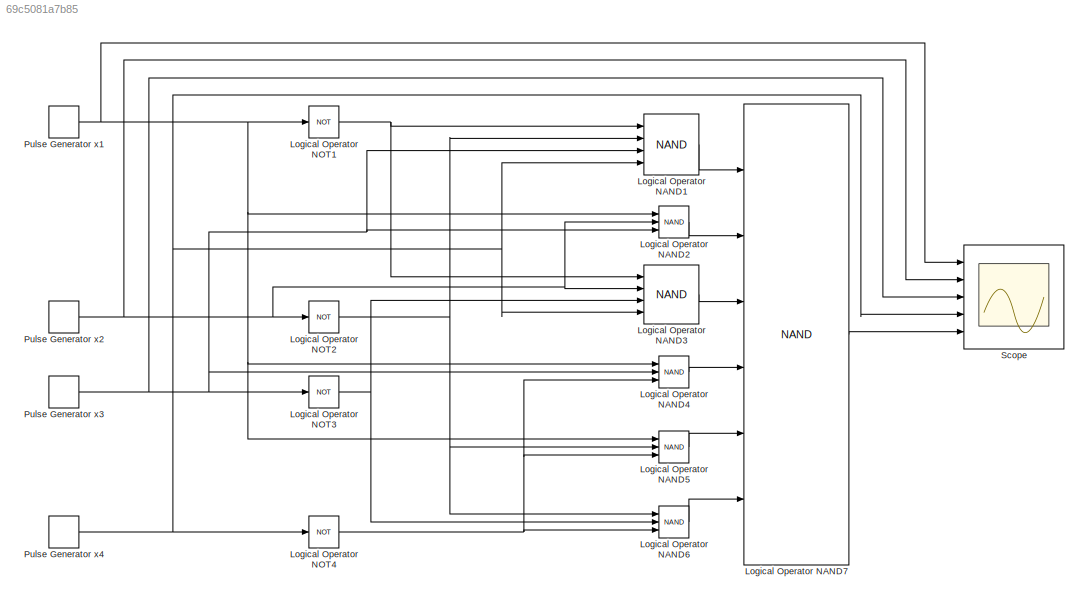
MODEL slx_69c5081a7b85
KIND model
CONFIG AbsTol = auto
CONFIG EnableMultiTasking = off
CONFIG FixedStep = auto
CONFIG MaxStep = auto
CONFIG MinStep = auto
CONFIG RelTol = 1e-3
CONFIG SampleTimeConstraint = Unconstrained
CONFIG Solver = VariableStepAuto
CONFIG SolverName = VariableStepAuto
CONFIG StartTime = 0.0
CONFIG StopTime = 16
BLOCK [Logic] Logical Operator NAND1
  AllPortsSameDT = off
  Inputs = 4
  Operator = NAND
  OutDataTypeStr = boolean
  Ports = [4, 1]
BLOCK [Logic] Logical Operator NAND2
  AllPortsSameDT = off
  Inputs = 3
  Operator = NAND
  OutDataTypeStr = boolean
  Ports = [3, 1]
BLOCK [Logic] Logical Operator NAND3
  AllPortsSameDT = off
  Inputs = 4
  Operator = NAND
  OutDataTypeStr = boolean
  Ports = [4, 1]
BLOCK [Logic] Logical Operator NAND4
  AllPortsSameDT = off
  Inputs = 3
  Operator = NAND
  OutDataTypeStr = boolean
  Ports = [3, 1]
BLOCK [Logic] Logical Operator NAND5
  AllPortsSameDT = off
  Inputs = 3
  Operator = NAND
  OutDataTypeStr = boolean
  Ports = [3, 1]
BLOCK [Logic] Logical Operator NAND6
  AllPortsSameDT = off
  Inputs = 3
  Operator = NAND
  OutDataTypeStr = boolean
  Ports = [3, 1]
BLOCK [Logic] Logical Operator NAND7
  AllPortsSameDT = off
  Inputs = 6
  Operator = NAND
  OutDataTypeStr = boolean
  Ports = [6, 1]
BLOCK [Logic] Logical Operator NOT1
  AllPortsSameDT = off
  Operator = NOT
  OutDataTypeStr = boolean
  Ports = [1, 1]
BLOCK [Logic] Logical Operator NOT2
  AllPortsSameDT = off
  Operator = NOT
  OutDataTypeStr = boolean
  Ports = [1, 1]
BLOCK [Logic] Logical Operator NOT3
  AllPortsSameDT = off
  Operator = NOT
  OutDataTypeStr = boolean
  Ports = [1, 1]
BLOCK [Logic] Logical Operator NOT4
  AllPortsSameDT = off
  Operator = NOT
  OutDataTypeStr = boolean
  Ports = [1, 1]
BLOCK [DiscretePulseGenerator] Pulse Generator x1
  Ports = [0, 1]
  PulseType = Time based
  PulseWidth = 50
BLOCK [DiscretePulseGenerator] Pulse Generator x2
  Period = 4
  Ports = [0, 1]
  PulseType = Time based
  PulseWidth = 50
BLOCK [DiscretePulseGenerator] Pulse Generator x3
  Period = 8
  Ports = [0, 1]
  PulseType = Time based
  PulseWidth = 50
BLOCK [DiscretePulseGenerator] Pulse Generator x4
  Period = 16
  Ports = [0, 1]
  PulseType = Time based
  PulseWidth = 50
BLOCK [Scope] Scope
  NumInputPorts = 5
  Ports = [5]
  ScopeSpecificationString = Simulink.scopes.TimeScopeBlockCfg('CurrentConfiguration', extmgr.ConfigurationSet(extmgr.Configuration('Core','General UI',true),extmgr.Configuration('Core','Source UI',true),extmgr.Configuration('Sources','WiredSimulink',true),extmgr.Configuration('Visuals','Time Domain',true,'SerializedDisplays',{struct('MinYLimReal','-1','MaxYLimReal','2','YLabelReal','','MinYLimMag','0','MaxYLimMag','10','Lege...<+6029ch>
LINE Logical Operator NAND1:1 -> Logical Operator NAND7:1
LINE Logical Operator NAND2:1 -> Logical Operator NAND7:2
LINE Logical Operator NAND3:1 -> Logical Operator NAND7:3
LINE Logical Operator NAND4:1 -> Logical Operator NAND7:4
LINE Logical Operator NAND5:1 -> Logical Operator NAND7:5
LINE Logical Operator NAND6:1 -> Logical Operator NAND7:6
LINE Logical Operator NAND7:1 -> Scope:5
NET Logical Operator NOT1:1 -> Logical Operator NAND1:1, Logical Operator NAND3:1
NET Logical Operator NOT2:1 -> Logical Operator NAND1:2, Logical Operator NAND5:2, Logical Operator NAND6:1
NET Logical Operator NOT3:1 -> Logical Operator NAND3:3, Logical Operator NAND6:2
NET Logical Operator NOT4:1 -> Logical Operator NAND4:3, Logical Operator NAND5:3, Logical Operator NAND6:3
NET Pulse Generator x1:1 -> Logical Operator NAND2:1, Logical Operator NAND4:1, Logical Operator NAND5:1, Logical Operator NOT1:1, Scope:1
NET Pulse Generator x2:1 -> Logical Operator NAND2:2, Logical Operator NAND3:2, Logical Operator NOT2:1, Scope:2
NET Pulse Generator x3:1 -> Logical Operator NAND1:3, Logical Operator NAND2:3, Logical Operator NAND4:2, Logical Operator NOT3:1, Scope:3
NET Pulse Generator x4:1 -> Logical Operator NAND1:4, Logical Operator NAND3:4, Logical Operator NOT4:1, Scope:4
note: NET lines group one-source signal fan-out (src -> all destinations, sorted); 1:1 wires keep LINE
